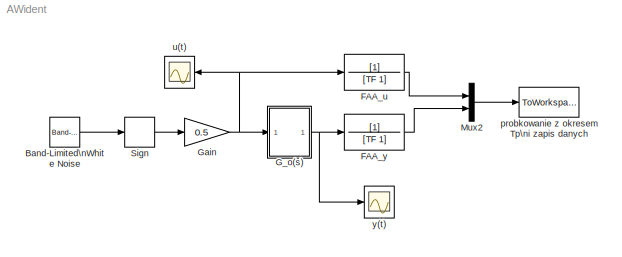
MODEL AWident
KIND model
BLOCK [Reference] Band-Limited\nWhite Noise  REF=simulink/Sources/Band-Limited\nWhite Noise
  Cov = [0.5]*Tp
  Ports = [0, 1]
  SID = 1
  SourceBlock = simulink/Sources/Band-Limited\nWhite Noise
  SourceType = Band-Limited White Noise.
  Ts = Tp
  VectorParams1D = on
  seed = [23341]
BLOCK [TransferFcn] FAA_u
  Denominator = [TF 1]
  SID = 2
BLOCK [TransferFcn] FAA_y
  Denominator = [TF 1]
  SID = 3
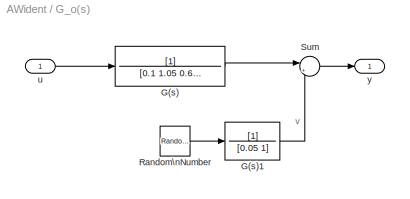
BLOCK [SubSystem] G_o(s)
  Ports = [1, 1]
  RequestExecContextInheritance = off
  SID = 4
  Variant = off
BLOCK [TransferFcn] G_o(s)/G(s)
  Denominator = [0.1 1.05 0.6 1]
  SID = 6
BLOCK [TransferFcn] G_o(s)/G(s)1
  Denominator = [0.05 1]
  SID = 7
BLOCK [RandomNumber] G_o(s)/Random\nNumber
  SID = 8
  SampleTime = Tp*0.1
  Seed = 159
  Variance = sigma2v
BLOCK [Sum] G_o(s)/Sum
  IconShape = round
  InputSameDT = off
  Inputs = |++
  OutDataTypeStr = Inherit: Inherit via internal rule
  Ports = [2, 1]
  SID = 9
  SaturateOnIntegerOverflow = off
BLOCK [Inport] G_o(s)/u
  IconDisplay = Port number
  SID = 5
BLOCK [Outport] G_o(s)/y
  IconDisplay = Port number
  SID = 10
BLOCK [Gain] Gain
  Gain = 0.5
  OutDataTypeStr = Inherit: Inherit via internal rule
  ParamDataTypeStr = Inherit: Inherit via internal rule
  SID = 12
  SaturateOnIntegerOverflow = off
BLOCK [Mux] Mux2
  DisplayOption = bar
  Inputs = 2
  Ports = [2, 1]
  SID = 13
BLOCK [Signum] Sign
  SID = 14
  ZeroCross = off
BLOCK [ToWorkspace] probkowanie z okresem Tp\ni zapis danych
  MaxDataPoints = inf
  Ports = [1]
  SID = 15
  SampleTime = Tp
  VariableName = Zdata
BLOCK [Scope] u(t)
  Ports = [1]
  SID = 16
  ScopeSpecificationString = Simulink.scopes.TimeScopeBlockCfg('CurrentConfiguration', extmgr.ConfigurationSet(extmgr.Configuration('Core','General UI',true),extmgr.Configuration('Core','Source UI',true),extmgr.Configuration('Sources','WiredSimulink',true,'DataLoggingVariableName','ScopeData1','DataLoggingSaveFormat','StructureWithTime','DataLoggingDecimation','1','DataLoggingDecimateData',true),extmgr.Configuration('Visuals'...<+1653ch>
BLOCK [Scope] y(t)
  Ports = [1]
  SID = 17
  ScopeSpecificationString = Simulink.scopes.TimeScopeBlockCfg('CurrentConfiguration', extmgr.ConfigurationSet(extmgr.Configuration('Core','General UI',true),extmgr.Configuration('Core','Source UI',true),extmgr.Configuration('Sources','WiredSimulink',true,'DataLoggingSaveFormat','StructureWithTime','DataLoggingDecimation','1','DataLoggingDecimateData',true),extmgr.Configuration('Visuals','Time Domain',true,'SerializedDisplays...<+1626ch>
ANNOTATION G_o(s): v
LINE Band-Limited\nWhite Noise:1 -> Sign:1
LINE FAA_u:1 -> Mux2:1
LINE FAA_y:1 -> Mux2:2
LINE G_o(s)/G(s)1:1 -> G_o(s)/Sum:2
LINE G_o(s)/G(s):1 -> G_o(s)/Sum:1
LINE G_o(s)/Random\nNumber:1 -> G_o(s)/G(s)1:1
LINE G_o(s)/Sum:1 -> G_o(s)/y:1
LINE G_o(s)/u:1 -> G_o(s)/G(s):1
NET G_o(s):1 -> FAA_y:1, y(t):1
NET Gain:1 -> FAA_u:1, G_o(s):1, u(t):1
LINE Mux2:1 -> probkowanie z okresem Tp\ni zapis danych:1
LINE Sign:1 -> Gain:1
note: NET lines group one-source signal fan-out (src -> all destinations, sorted); 1:1 wires keep LINE
